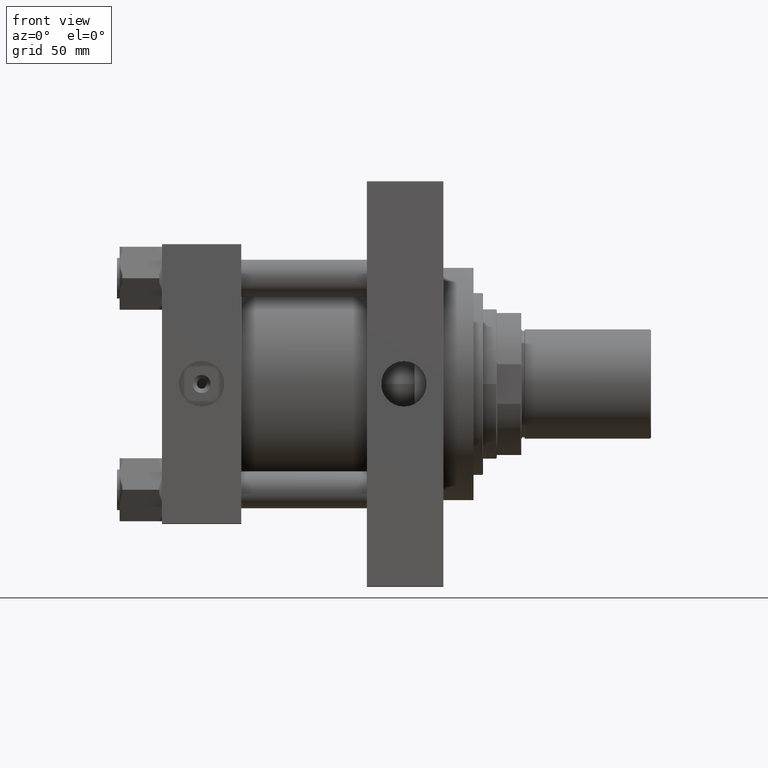
[diagram: clean part render]
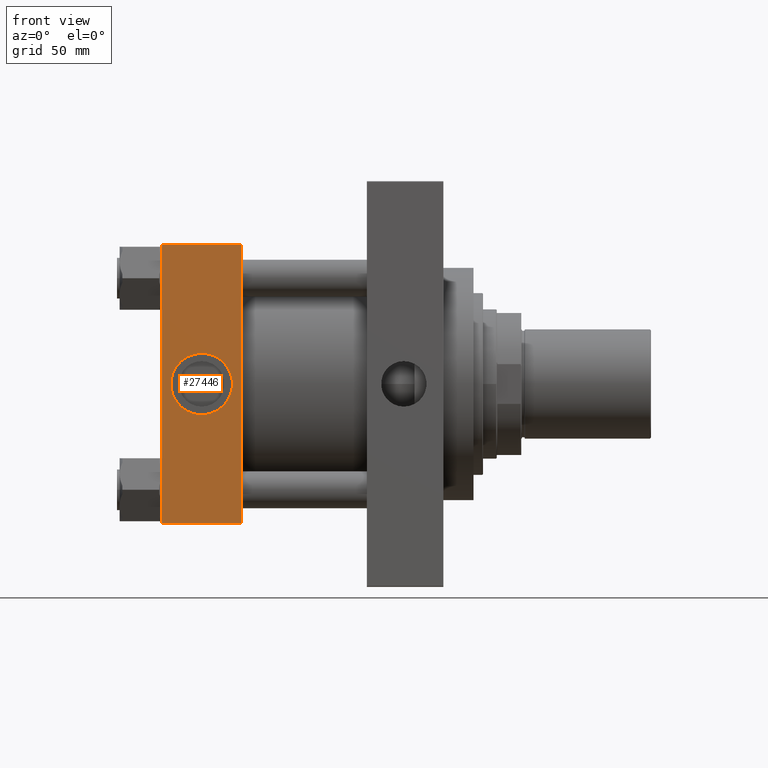
[diagram: same view with one face highlighted and labeled with its STEP entity id]
A machine part, front view. The second image highlights one B-rep face of the part: STEP entity #27446.
In plain terms, the highlighted planar face has unit normal (0, 1, -0).
Its self-contained STEP definition (entity closure, byte-faithful):
#359 = VECTOR ( 'NONE', #24636, 1000.000000000000000 ) ;
#2397 = CARTESIAN_POINT ( 'NONE',  ( 0.000000000000000000, -102.5000000000000000, -101.9999999999998863 ) ) ;
#2880 = LINE ( 'NONE', #18403, #42196 ) ;
#2921 = CIRCLE ( 'NONE', #8621, 22.50000000000000711 ) ;
#3260 = DIRECTION ( 'NONE',  ( 0.000000000000000000, 1.353930517835556973E-16, 1.000000000000000000 ) ) ;
#5677 = ORIENTED_EDGE ( 'NONE', *, *, #43320, .T. ) ;
#7706 = CARTESIAN_POINT ( 'NONE',  ( 0.000000000000000000, -102.4999999999999716, 102.0000000000000000 ) ) ;
#8621 = AXIS2_PLACEMENT_3D ( 'NONE', #47678, #12787, #17362 ) ;
#10888 = DIRECTION ( 'NONE',  ( 0.000000000000000000, 1.000000000000000000, -1.353930517835556973E-16 ) ) ;
#12057 = AXIS2_PLACEMENT_3D ( 'NONE', #42201, #10888, #3260 ) ;
#12275 = VERTEX_POINT ( 'NONE', #26174 ) ;
#12787 = DIRECTION ( 'NONE',  ( 0.000000000000000000, -1.000000000000000000, -8.673617379884036705E-17 ) ) ;
#12941 = LINE ( 'NONE', #21081, #359 ) ;
#13026 = EDGE_CURVE ( 'NONE', #44142, #36494, #18962, .T. ) ;
#13173 = CARTESIAN_POINT ( 'NONE',  ( 58.00000000000000000, -102.5000000000000000, -101.9999999999998863 ) ) ;
#13808 = VERTEX_POINT ( 'NONE', #13173 ) ;
#14098 = CARTESIAN_POINT ( 'NONE',  ( 0.000000000000000000, -102.4999999999999716, 102.5000000000000000 ) ) ;
#15709 = FACE_BOUND ( 'NONE', #18934, .T. ) ;
#17362 = DIRECTION ( 'NONE',  ( 0.000000000000000000, 0.000000000000000000, -1.000000000000000000 ) ) ;
#17918 = LINE ( 'NONE', #48997, #26838 ) ;
#17938 = VERTEX_POINT ( 'NONE', #7706 ) ;
#18403 = CARTESIAN_POINT ( 'NONE',  ( 58.00000000000000000, -102.5000000000000000, -101.9999999999999432 ) ) ;
#18934 = EDGE_LOOP ( 'NONE', ( #45410, #23199 ) ) ;
#18962 = CIRCLE ( 'NONE', #37691, 22.50000000000000711 ) ;
#19398 = EDGE_CURVE ( 'NONE', #12275, #13808, #12941, .T. ) ;
#21081 = CARTESIAN_POINT ( 'NONE',  ( 58.00000000000000000, -102.4999999999999716, 102.5000000000000000 ) ) ;
#22638 = VECTOR ( 'NONE', #29617, 1000.000000000000000 ) ;
#23199 = ORIENTED_EDGE ( 'NONE', *, *, #13026, .F. ) ;
#23544 = DIRECTION ( 'NONE',  ( 0.000000000000000000, 0.000000000000000000, -1.000000000000000000 ) ) ;
#24636 = DIRECTION ( 'NONE',  ( 0.000000000000000000, -1.353930517835556973E-16, -1.000000000000000000 ) ) ;
#26174 = CARTESIAN_POINT ( 'NONE',  ( 58.00000000000000000, -102.4999999999999716, 102.0000000000000000 ) ) ;
#26838 = VECTOR ( 'NONE', #47800, 1000.000000000000000 ) ;
#27446 = ADVANCED_FACE ( 'NONE', ( #15709, #50101 ), #46276, .F. ) ;
#29617 = DIRECTION ( 'NONE',  ( 0.000000000000000000, -1.353930517835556973E-16, -1.000000000000000000 ) ) ;
#32408 = ORIENTED_EDGE ( 'NONE', *, *, #19398, .F. ) ;
#33441 = LINE ( 'NONE', #14098, #22638 ) ;
#36494 = VERTEX_POINT ( 'NONE', #39714 ) ;
#37117 = EDGE_CURVE ( 'NONE', #36494, #44142, #2921, .T. ) ;
#37691 = AXIS2_PLACEMENT_3D ( 'NONE', #39590, #39101, #23544 ) ;
#37768 = DIRECTION ( 'NONE',  ( 1.000000000000000000, 0.000000000000000000, 0.000000000000000000 ) ) ;
#38052 = ORIENTED_EDGE ( 'NONE', *, *, #47995, .T. ) ;
#39101 = DIRECTION ( 'NONE',  ( 0.000000000000000000, -1.000000000000000000, -8.673617379884036705E-17 ) ) ;
#39590 = CARTESIAN_POINT ( 'NONE',  ( 29.00000000000000000, -102.4999999999999858, 1.387778780781445676E-14 ) ) ;
#39642 = EDGE_LOOP ( 'NONE', ( #5677, #38052, #32408, #43365 ) ) ;
#39714 = CARTESIAN_POINT ( 'NONE',  ( 29.00000000000000000, -102.4999999999999858, -22.49999999999999289 ) ) ;
#39791 = CARTESIAN_POINT ( 'NONE',  ( 29.00000000000000355, -102.4999999999999858, 22.50000000000002132 ) ) ;
#42196 = VECTOR ( 'NONE', #37768, 1000.000000000000000 ) ;
#42201 = CARTESIAN_POINT ( 'NONE',  ( 58.00000000000000000, -102.4999999999999716, 102.5000000000000000 ) ) ;
#43313 = VERTEX_POINT ( 'NONE', #2397 ) ;
#43320 = EDGE_CURVE ( 'NONE', #17938, #43313, #33441, .T. ) ;
#43365 = ORIENTED_EDGE ( 'NONE', *, *, #49956, .T. ) ;
#44142 = VERTEX_POINT ( 'NONE', #39791 ) ;
#45410 = ORIENTED_EDGE ( 'NONE', *, *, #37117, .F. ) ;
#46276 = PLANE ( 'NONE',  #12057 ) ;
#47678 = CARTESIAN_POINT ( 'NONE',  ( 29.00000000000000000, -102.4999999999999858, 1.387778780781445676E-14 ) ) ;
#47800 = DIRECTION ( 'NONE',  ( -1.000000000000000000, 0.000000000000000000, 0.000000000000000000 ) ) ;
#47995 = EDGE_CURVE ( 'NONE', #43313, #13808, #2880, .T. ) ;
#48997 = CARTESIAN_POINT ( 'NONE',  ( 58.00000000000000000, -102.4999999999999716, 102.0000000000000000 ) ) ;
#49956 = EDGE_CURVE ( 'NONE', #12275, #17938, #17918, .T. ) ;
#50101 = FACE_OUTER_BOUND ( 'NONE', #39642, .T. ) ;